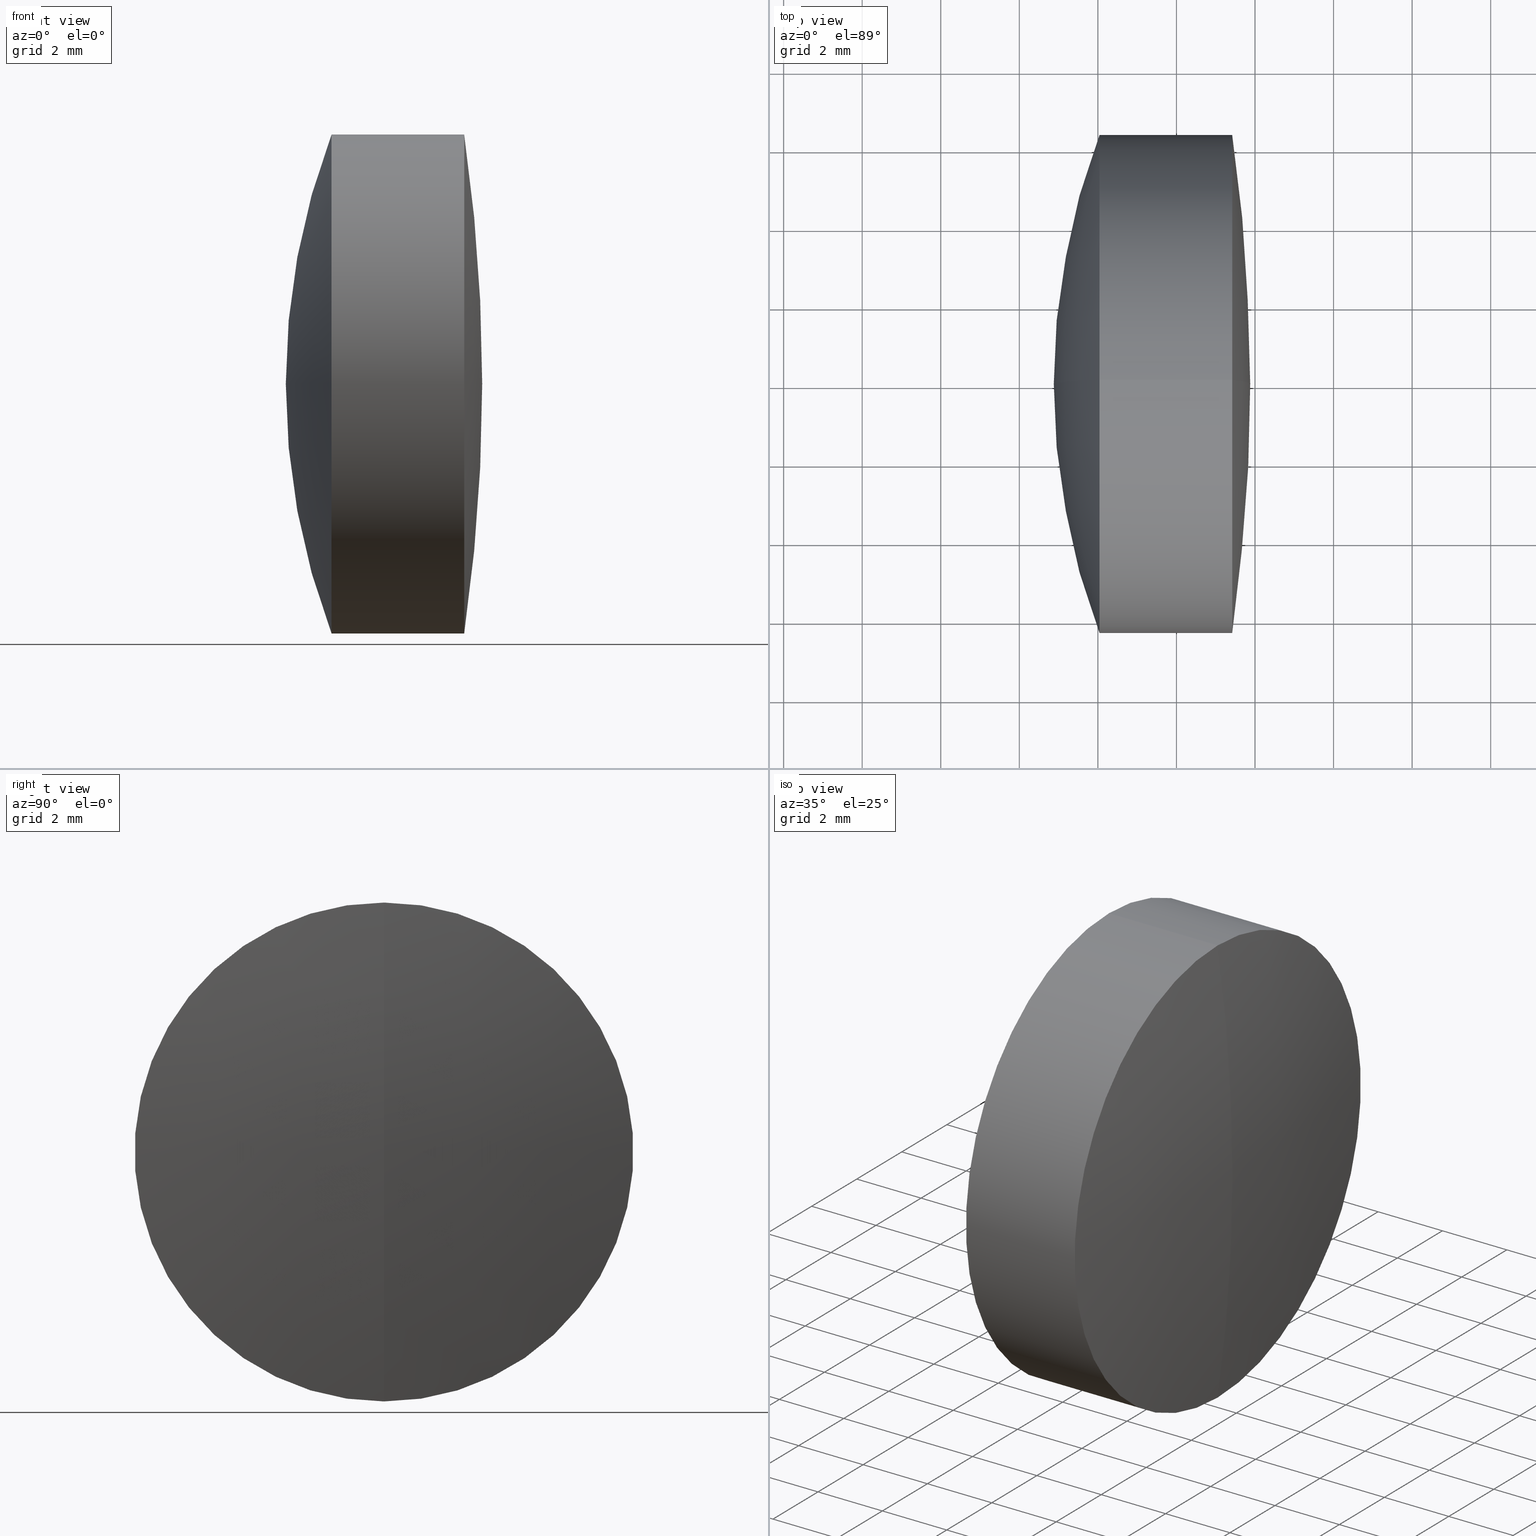
[diagram: canonical four-view strip — front | top / right | iso, engineering-drawing reading convention]
A machine part, canonical four-view strip (front | top / right | iso — engineering-drawing reading convention). The complete STEP part file that produces these views, byte-faithful:
ISO-10303-21;
HEADER;
FILE_DESCRIPTION (( 'STEP AP214' ),
    '1' );
FILE_NAME ('145026.STEP',
    '2019-05-10T08:41:28',
    ( 'user' ),
    ( '΢���й�' ),
    'SwSTEP 2.0',
    'SolidWorks 2016',
    '' );
FILE_SCHEMA (( 'AUTOMOTIVE_DESIGN' ));
ENDSEC;

DATA;
#1 = ORIENTED_EDGE ( 'NONE', *, *, #9, .T. ) ;
#2 = DIRECTION ( 'NONE',  ( 0.0000000000000000000, 0.0000000000000000000, 1.000000000000000000 ) ) ;
#3 = CARTESIAN_POINT ( 'NONE',  ( -9.122170847029236600, 0.0000000000000000000, 0.0000000000000000000 ) ) ;
#4 = CARTESIAN_POINT ( 'NONE',  ( -9.702612178336682500, 0.0000000000000000000, 0.0000000000000000000 ) ) ;
#5 = CARTESIAN_POINT ( 'NONE',  ( 18.77782915297076000, 0.0000000000000000000, -3.015192609939291800E-017 ) ) ;
#6 = ORIENTED_EDGE ( 'NONE', *, *, #180, .T. ) ;
#7 = CIRCLE ( 'NONE', #51, 13.50000000000000000 ) ;
#8 = PRODUCT ( '145026', '145026', '', ( #99 ) ) ;
#9 = EDGE_CURVE ( 'NONE', #326, #319, #221, .T. ) ;
#10 = ORIENTED_EDGE ( 'NONE', *, *, #294, .T. ) ;
#11 = FACE_OUTER_BOUND ( 'NONE', #289, .T. ) ;
#12 = CARTESIAN_POINT ( 'NONE',  ( 5.419314038603073600, 7.776507174585693100E-016, -6.349999999999999600 ) ) ;
#13 = CARTESIAN_POINT ( 'NONE',  ( 2.791162019973177300, 0.0000000000000000000, 0.0000000000000000000 ) ) ;
#14 = SPHERICAL_SURFACE ( 'NONE', #260, 17.89999999999999900 ) ;
#15 = EDGE_CURVE ( 'NONE', #319, #120, #347, .T. ) ;
#16 = PRESENTATION_STYLE_ASSIGNMENT (( #49 ) ) ;
#17 = ORIENTED_EDGE ( 'NONE', *, *, #86, .F. ) ;
#18 = ORIENTED_EDGE ( 'NONE', *, *, #306, .F. ) ;
#19 =( NAMED_UNIT ( * ) SI_UNIT ( $, .STERADIAN. ) SOLID_ANGLE_UNIT ( ) );
#20 = DIRECTION ( 'NONE',  ( -1.000000000000000000, -0.0000000000000000000, -0.0000000000000000000 ) ) ;
#21 = CYLINDRICAL_SURFACE ( 'NONE', #250, 6.350000000000000500 ) ;
#22 = CARTESIAN_POINT ( 'NONE',  ( -9.702612178336682500, 7.776507174585692200E-016, -6.349999999999999600 ) ) ;
#23 = VERTEX_POINT ( 'NONE', #208 ) ;
#24 = AXIS2_PLACEMENT_3D ( 'NONE', #105, #178, #224 ) ;
#25 = DIRECTION ( 'NONE',  ( -1.000000000000000000, -0.0000000000000000000, -0.0000000000000000000 ) ) ;
#26 = CIRCLE ( 'NONE', #31, 13.50000000000000000 ) ;
#27 = CIRCLE ( 'NONE', #98, 13.50000000000000000 ) ;
#28 = APPLICATION_PROTOCOL_DEFINITION ( 'draft international standard', 'automotive_design', 1998, #340 ) ;
#29 = ORIENTED_EDGE ( 'NONE', *, *, #196, .T. ) ;
#30 = VERTEX_POINT ( 'NONE', #101 ) ;
#31 = AXIS2_PLACEMENT_3D ( 'NONE', #3, #345, #133 ) ;
#32 = DIRECTION ( 'NONE',  ( -0.0000000000000000000, 1.000000000000000000, 1.224646799147353200E-016 ) ) ;
#33 = FILL_AREA_STYLE_COLOUR ( '', #84 ) ;
#34 = DIRECTION ( 'NONE',  ( 0.0000000000000000000, 0.0000000000000000000, 1.000000000000000000 ) ) ;
#35 = ORIENTED_EDGE ( 'NONE', *, *, #338, .F. ) ;
#36 = FACE_OUTER_BOUND ( 'NONE', #113, .T. ) ;
#37 = ORIENTED_EDGE ( 'NONE', *, *, #249, .F. ) ;
#38 = CARTESIAN_POINT ( 'NONE',  ( 2.791162019973177300, 7.776507174585694100E-016, -6.350000000000001400 ) ) ;
#39 = ADVANCED_FACE ( 'NONE', ( #322 ), #173, .T. ) ;
#40 = AXIS2_PLACEMENT_3D ( 'NONE', #283, #186, #280 ) ;
#41 = AXIS2_PLACEMENT_3D ( 'NONE', #13, #301, #346 ) ;
#42 = DIRECTION ( 'NONE',  ( -1.000000000000000000, -0.0000000000000000000, -0.0000000000000000000 ) ) ;
#43 = VERTEX_POINT ( 'NONE', #12 ) ;
#44 = FILL_AREA_STYLE ('',( #33 ) ) ;
#45 = CARTESIAN_POINT ( 'NONE',  ( 2.791162019973179000, 7.776507174585692200E-016, -6.349999999999999600 ) ) ;
#46 = EDGE_LOOP ( 'NONE', ( #281, #263, #152, #209 ) ) ;
#47 = ORIENTED_EDGE ( 'NONE', *, *, #192, .T. ) ;
#48 = ORIENTED_EDGE ( 'NONE', *, *, #210, .T. ) ;
#49 = SURFACE_STYLE_USAGE ( .BOTH. , #172 ) ;
#50 = DIRECTION ( 'NONE',  ( -1.000000000000000000, -0.0000000000000000000, -0.0000000000000000000 ) ) ;
#51 = AXIS2_PLACEMENT_3D ( 'NONE', #295, #165, #134 ) ;
#52 = FILL_AREA_STYLE_COLOUR ( '', #81 ) ;
#53 = ORIENTED_EDGE ( 'NONE', *, *, #287, .F. ) ;
#54 = SURFACE_STYLE_FILL_AREA ( #94 ) ;
#55 = SHAPE_DEFINITION_REPRESENTATION ( #342, #82 ) ;
#56 = STYLED_ITEM ( 'NONE', ( #299 ), #82 ) ;
#57 = VERTEX_POINT ( 'NONE', #266 ) ;
#58 = ORIENTED_EDGE ( 'NONE', *, *, #63, .F. ) ;
#59 = ORIENTED_EDGE ( 'NONE', *, *, #234, .F. ) ;
#60 = DIRECTION ( 'NONE',  ( -1.000000000000000000, -0.0000000000000000000, -0.0000000000000000000 ) ) ;
#61 = UNCERTAINTY_MEASURE_WITH_UNIT (LENGTH_MEASURE( 1.000000000000000100E-005 ), #262, 'distance_accuracy_value', 'NONE');
#62 = CARTESIAN_POINT ( 'NONE',  ( 5.419314038603073600, 0.0000000000000000000, 0.0000000000000000000 ) ) ;
#63 = EDGE_CURVE ( 'NONE', #135, #332, #146, .T. ) ;
#64 = EDGE_LOOP ( 'NONE', ( #140, #29, #58, #118 ) ) ;
#65 = AXIS2_PLACEMENT_3D ( 'NONE', #207, #256, #344 ) ;
#66 = DIRECTION ( 'NONE',  ( -1.000000000000000000, -0.0000000000000000000, -0.0000000000000000000 ) ) ;
#67 = DIRECTION ( 'NONE',  ( -1.000000000000000000, -0.0000000000000000000, -0.0000000000000000000 ) ) ;
#68 = EDGE_LOOP ( 'NONE', ( #53, #1, #198, #37 ) ) ;
#69 = DIRECTION ( 'NONE',  ( 0.0000000000000000000, 0.0000000000000000000, 1.000000000000000000 ) ) ;
#70 = SPHERICAL_SURFACE ( 'NONE', #343, 44.20000000000000300 ) ;
#71 =( GEOMETRIC_REPRESENTATION_CONTEXT ( 3 ) GLOBAL_UNCERTAINTY_ASSIGNED_CONTEXT ( ( #166 ) ) GLOBAL_UNIT_ASSIGNED_CONTEXT ( ( #162, #195, #129 ) ) REPRESENTATION_CONTEXT ( 'NONE', 'WORKASPACE' ) );
#72 = FILL_AREA_STYLE ('',( #155 ) ) ;
#73 = CIRCLE ( 'NONE', #244, 44.20000000000000300 ) ;
#74 = UNCERTAINTY_MEASURE_WITH_UNIT (LENGTH_MEASURE( 1.000000000000000100E-005 ), #145, 'distance_accuracy_value', 'NONE');
#75 = DIRECTION ( 'NONE',  ( -0.0000000000000000000, 1.000000000000000000, 1.224646799147353200E-016 ) ) ;
#76 = SPHERICAL_SURFACE ( 'NONE', #212, 13.50000000000000000 ) ;
#77 = SPHERICAL_SURFACE ( 'NONE', #65, 13.50000000000000000 ) ;
#78 = ADVANCED_FACE ( 'NONE', ( #11 ), #320, .T. ) ;
#79 =( GEOMETRIC_REPRESENTATION_CONTEXT ( 3 ) GLOBAL_UNCERTAINTY_ASSIGNED_CONTEXT ( ( #247 ) ) GLOBAL_UNIT_ASSIGNED_CONTEXT ( ( #96, #138, #19 ) ) REPRESENTATION_CONTEXT ( 'NONE', 'WORKASPACE' ) );
#80 = EDGE_LOOP ( 'NONE', ( #204, #147, #119 ) ) ;
#81 = COLOUR_RGB ( '',1.000000000000000000, 1.000000000000000000, 1.000000000000000000 ) ;
#82 = ADVANCED_BREP_SHAPE_REPRESENTATION ( '145026', ( #143, #176, #279 ), #79 ) ;
#83 = DIRECTION ( 'NONE',  ( 0.0000000000000000000, 0.0000000000000000000, 1.000000000000000000 ) ) ;
#84 = COLOUR_RGB ( '',1.000000000000000000, 1.000000000000000000, 1.000000000000000000 ) ;
#85 = ADVANCED_FACE ( 'NONE', ( #97 ), #14, .T. ) ;
#86 = EDGE_CURVE ( 'NONE', #339, #43, #73, .T. ) ;
#87 = APPLICATION_CONTEXT ( 'automotive_design' ) ;
#88 = AXIS2_PLACEMENT_3D ( 'NONE', #136, #67, #324 ) ;
#89 = DIRECTION ( 'NONE',  ( 1.000000000000000000, 0.0000000000000000000, 0.0000000000000000000 ) ) ;
#90 = SURFACE_STYLE_FILL_AREA ( #44 ) ;
#91 = CARTESIAN_POINT ( 'NONE',  ( -9.122170847029236600, 0.0000000000000000000, 0.0000000000000000000 ) ) ;
#92 = DIRECTION ( 'NONE',  ( 0.0000000000000000000, -1.224646799147353200E-016, 1.000000000000000000 ) ) ;
#93 = PRESENTATION_STYLE_ASSIGNMENT (( #334 ) ) ;
#94 = FILL_AREA_STYLE ('',( #52 ) ) ;
#95 = FACE_OUTER_BOUND ( 'NONE', #80, .T. ) ;
#96 =( LENGTH_UNIT ( ) NAMED_UNIT ( * ) SI_UNIT ( .MILLI., .METRE. ) );
#97 = FACE_OUTER_BOUND ( 'NONE', #185, .T. ) ;
#98 = AXIS2_PLACEMENT_3D ( 'NONE', #167, #32, #142 ) ;
#99 = PRODUCT_CONTEXT ( 'NONE', #87, 'mechanical' ) ;
#100 = DIRECTION ( 'NONE',  ( 0.0000000000000000000, 1.000000000000000000, 0.0000000000000000000 ) ) ;
#101 = CARTESIAN_POINT ( 'NONE',  ( 2.042014263937123700, 7.776507174585694100E-016, -6.350000000000000500 ) ) ;
#102 = STYLED_ITEM ( 'NONE', ( #93 ), #143 ) ;
#103 = FACE_OUTER_BOUND ( 'NONE', #46, .T. ) ;
#104 = ADVANCED_FACE ( 'NONE', ( #36 ), #70, .T. ) ;
#105 = CARTESIAN_POINT ( 'NONE',  ( 2.042014263937123700, 0.0000000000000000000, 0.0000000000000000000 ) ) ;
#106 = VERTEX_POINT ( 'NONE', #273 ) ;
#107 = COLOUR_RGB ( '',1.000000000000000000, 1.000000000000000000, 1.000000000000000000 ) ;
#108 = ORIENTED_EDGE ( 'NONE', *, *, #328, .T. ) ;
#109 = AXIS2_PLACEMENT_3D ( 'NONE', #311, #304, #228 ) ;
#110 = SPHERICAL_SURFACE ( 'NONE', #240, 13.50000000000000000 ) ;
#111 = VECTOR ( 'NONE', #50, 1000.000000000000000 ) ;
#112 = CARTESIAN_POINT ( 'NONE',  ( -38.32217084702924100, 0.0000000000000000000, 0.0000000000000000000 ) ) ;
#113 = EDGE_LOOP ( 'NONE', ( #17, #47, #164 ) ) ;
#114 = CARTESIAN_POINT ( 'NONE',  ( -0.5519199926577972300, 7.776507174585693100E-016, -6.350000000000000500 ) ) ;
#115 = MECHANICAL_DESIGN_GEOMETRIC_PRESENTATION_REPRESENTATION (  '', ( #267 ), #71 ) ;
#116 = CIRCLE ( 'NONE', #41, 6.350000000000001400 ) ;
#117 = DIRECTION ( 'NONE',  ( -1.000000000000000000, -0.0000000000000000000, -0.0000000000000000000 ) ) ;
#118 = ORIENTED_EDGE ( 'NONE', *, *, #210, .F. ) ;
#119 = ORIENTED_EDGE ( 'NONE', *, *, #9, .F. ) ;
#120 = VERTEX_POINT ( 'NONE', #231 ) ;
#121 = DIRECTION ( 'NONE',  ( 0.0000000000000000000, 0.0000000000000000000, 1.000000000000000000 ) ) ;
#122 = CARTESIAN_POINT ( 'NONE',  ( 18.77782915297076000, 0.0000000000000000000, -3.015192609939291800E-017 ) ) ;
#123 = AXIS2_PLACEMENT_3D ( 'NONE', #184, #233, #181 ) ;
#124 = CARTESIAN_POINT ( 'NONE',  ( 2.042014263937123700, 0.0000000000000000000, 0.0000000000000000000 ) ) ;
#125 = DIRECTION ( 'NONE',  ( 0.0000000000000000000, 0.0000000000000000000, 1.000000000000000000 ) ) ;
#126 = PRODUCT_DEFINITION_CONTEXT ( 'detailed design', #340, 'design' ) ;
#127 = CARTESIAN_POINT ( 'NONE',  ( -0.5519199926577972300, 0.0000000000000000000, 6.350000000000000500 ) ) ;
#128 = ORIENTED_EDGE ( 'NONE', *, *, #313, .T. ) ;
#129 =( NAMED_UNIT ( * ) SI_UNIT ( $, .STERADIAN. ) SOLID_ANGLE_UNIT ( ) );
#130 = DIRECTION ( 'NONE',  ( -1.000000000000000000, -0.0000000000000000000, -0.0000000000000000000 ) ) ;
#131 = DIRECTION ( 'NONE',  ( -1.000000000000000000, -0.0000000000000000000, -0.0000000000000000000 ) ) ;
#132 = AXIS2_PLACEMENT_3D ( 'NONE', #291, #282, #69 ) ;
#133 = DIRECTION ( 'NONE',  ( 0.0000000000000000000, 0.0000000000000000000, -1.000000000000000000 ) ) ;
#134 = DIRECTION ( 'NONE',  ( 0.0000000000000000000, -1.224646799147353200E-016, 1.000000000000000000 ) ) ;
#135 = VERTEX_POINT ( 'NONE', #222 ) ;
#136 = CARTESIAN_POINT ( 'NONE',  ( -9.702612178336682500, 0.0000000000000000000, 0.0000000000000000000 ) ) ;
#137 = FACE_OUTER_BOUND ( 'NONE', #68, .T. ) ;
#138 =( NAMED_UNIT ( * ) PLANE_ANGLE_UNIT ( ) SI_UNIT ( $, .RADIAN. ) );
#139 = CARTESIAN_POINT ( 'NONE',  ( -9.702612178336682500, 0.0000000000000000000, 6.349999999999999600 ) ) ;
#140 = ORIENTED_EDGE ( 'NONE', *, *, #234, .T. ) ;
#141 =( NAMED_UNIT ( * ) PLANE_ANGLE_UNIT ( ) SI_UNIT ( $, .RADIAN. ) );
#142 = DIRECTION ( 'NONE',  ( 0.0000000000000000000, -1.224646799147353200E-016, 1.000000000000000000 ) ) ;
#143 = MANIFOLD_SOLID_BREP ( '��ת1', #293 ) ;
#144 = AXIS2_PLACEMENT_3D ( 'NONE', #206, #230, #34 ) ;
#145 =( LENGTH_UNIT ( ) NAMED_UNIT ( * ) SI_UNIT ( .MILLI., .METRE. ) );
#146 = CIRCLE ( 'NONE', #123, 6.350000000000001400 ) ;
#147 = ORIENTED_EDGE ( 'NONE', *, *, #227, .T. ) ;
#148 = DIRECTION ( 'NONE',  ( 0.0000000000000000000, 0.0000000000000000000, 1.000000000000000000 ) ) ;
#149 = AXIS2_PLACEMENT_3D ( 'NONE', #248, #189, #241 ) ;
#150 = DIRECTION ( 'NONE',  ( 0.0000000000000000000, 1.000000000000000000, 0.0000000000000000000 ) ) ;
#151 = CARTESIAN_POINT ( 'NONE',  ( 2.791162019973179000, 0.0000000000000000000, 0.0000000000000000000 ) ) ;
#152 = ORIENTED_EDGE ( 'NONE', *, *, #180, .F. ) ;
#153 = APPLICATION_PROTOCOL_DEFINITION ( 'draft international standard', 'automotive_design', 1998, #87 ) ;
#154 = CARTESIAN_POINT ( 'NONE',  ( 5.877829152970762500, 0.0000000000000000000, 2.706469426115651000E-015 ) ) ;
#155 = FILL_AREA_STYLE_COLOUR ( '', #107 ) ;
#156 = CYLINDRICAL_SURFACE ( 'NONE', #271, 6.350000000000000500 ) ;
#157 = DIRECTION ( 'NONE',  ( -1.000000000000000000, -0.0000000000000000000, -0.0000000000000000000 ) ) ;
#158 = CARTESIAN_POINT ( 'NONE',  ( -0.5519199926577972300, 0.0000000000000000000, 0.0000000000000000000 ) ) ;
#159 = EDGE_CURVE ( 'NONE', #120, #309, #335, .T. ) ;
#160 = FACE_OUTER_BOUND ( 'NONE', #310, .T. ) ;
#161 = AXIS2_PLACEMENT_3D ( 'NONE', #229, #42, #148 ) ;
#162 =( LENGTH_UNIT ( ) NAMED_UNIT ( * ) SI_UNIT ( .MILLI., .METRE. ) );
#163 = DIRECTION ( 'NONE',  ( 0.0000000000000000000, 0.0000000000000000000, -1.000000000000000000 ) ) ;
#164 = ORIENTED_EDGE ( 'NONE', *, *, #328, .F. ) ;
#165 = DIRECTION ( 'NONE',  ( -0.0000000000000000000, 1.000000000000000000, 1.224646799147353200E-016 ) ) ;
#166 = UNCERTAINTY_MEASURE_WITH_UNIT (LENGTH_MEASURE( 1.000000000000000100E-005 ), #162, 'distance_accuracy_value', 'NONE');
#167 = CARTESIAN_POINT ( 'NONE',  ( -9.122170847029236600, 0.0000000000000000000, 0.0000000000000000000 ) ) ;
#168 = FACE_OUTER_BOUND ( 'NONE', #235, .T. ) ;
#169 =( NAMED_UNIT ( * ) PLANE_ANGLE_UNIT ( ) SI_UNIT ( $, .RADIAN. ) );
#170 = DIRECTION ( 'NONE',  ( 0.0000000000000000000, 1.000000000000000000, 0.0000000000000000000 ) ) ;
#171 = CIRCLE ( 'NONE', #203, 6.349999999999999600 ) ;
#172 = SURFACE_SIDE_STYLE ('',( #54 ) ) ;
#173 = SPHERICAL_SURFACE ( 'NONE', #40, 44.20000000000000300 ) ;
#174 = LINE ( 'NONE', #22, #205 ) ;
#175 = AXIS2_PLACEMENT_3D ( 'NONE', #217, #170, #194 ) ;
#176 = MANIFOLD_SOLID_BREP ( '��ת3', #316 ) ;
#177 = EDGE_LOOP ( 'NONE', ( #275, #269, #59 ) ) ;
#178 = DIRECTION ( 'NONE',  ( -1.000000000000000000, -0.0000000000000000000, -0.0000000000000000000 ) ) ;
#179 = ORIENTED_EDGE ( 'NONE', *, *, #159, .F. ) ;
#180 = EDGE_CURVE ( 'NONE', #120, #30, #171, .T. ) ;
#181 = DIRECTION ( 'NONE',  ( 0.0000000000000000000, 0.0000000000000000000, 1.000000000000000000 ) ) ;
#182 = FACE_OUTER_BOUND ( 'NONE', #215, .T. ) ;
#183 =( GEOMETRIC_REPRESENTATION_CONTEXT ( 3 ) GLOBAL_UNCERTAINTY_ASSIGNED_CONTEXT ( ( #61 ) ) GLOBAL_UNIT_ASSIGNED_CONTEXT ( ( #262, #169, #225 ) ) REPRESENTATION_CONTEXT ( 'NONE', 'WORKASPACE' ) );
#184 = CARTESIAN_POINT ( 'NONE',  ( 2.791162019973177300, 0.0000000000000000000, 0.0000000000000000000 ) ) ;
#185 = EDGE_LOOP ( 'NONE', ( #6, #303, #179 ) ) ;
#186 = DIRECTION ( 'NONE',  ( 0.0000000000000000000, 1.000000000000000000, 0.0000000000000000000 ) ) ;
#187 = LINE ( 'NONE', #127, #199 ) ;
#188 = ADVANCED_FACE ( 'NONE', ( #168 ), #77, .F. ) ;
#189 = DIRECTION ( 'NONE',  ( 0.0000000000000000000, -1.000000000000000000, 0.0000000000000000000 ) ) ;
#190 = ORIENTED_EDGE ( 'NONE', *, *, #249, .T. ) ;
#191 = CARTESIAN_POINT ( 'NONE',  ( 2.791162019973179000, 0.0000000000000000000, 6.349999999999999600 ) ) ;
#192 = EDGE_CURVE ( 'NONE', #339, #106, #213, .T. ) ;
#193 = ORIENTED_EDGE ( 'NONE', *, *, #306, .T. ) ;
#194 = DIRECTION ( 'NONE',  ( 0.0000000000000000000, 0.0000000000000000000, 1.000000000000000000 ) ) ;
#195 =( NAMED_UNIT ( * ) PLANE_ANGLE_UNIT ( ) SI_UNIT ( $, .RADIAN. ) );
#196 = EDGE_CURVE ( 'NONE', #43, #332, #286, .T. ) ;
#197 = MECHANICAL_DESIGN_GEOMETRIC_PRESENTATION_REPRESENTATION (  '', ( #56 ), #183 ) ;
#198 = ORIENTED_EDGE ( 'NONE', *, *, #15, .T. ) ;
#199 = VECTOR ( 'NONE', #130, 1000.000000000000000 ) ;
#200 = CIRCLE ( 'NONE', #323, 6.349999999999999600 ) ;
#201 = CARTESIAN_POINT ( 'NONE',  ( 0.0000000000000000000, 0.0000000000000000000, 0.0000000000000000000 ) ) ;
#202 = DIRECTION ( 'NONE',  ( 0.0000000000000000000, 1.000000000000000000, 0.0000000000000000000 ) ) ;
#203 = AXIS2_PLACEMENT_3D ( 'NONE', #124, #66, #246 ) ;
#204 = ORIENTED_EDGE ( 'NONE', *, *, #294, .F. ) ;
#205 = VECTOR ( 'NONE', #20, 1000.000000000000000 ) ;
#206 = CARTESIAN_POINT ( 'NONE',  ( 2.791162019973179000, 0.0000000000000000000, 0.0000000000000000000 ) ) ;
#207 = CARTESIAN_POINT ( 'NONE',  ( -9.122170847029236600, 0.0000000000000000000, 0.0000000000000000000 ) ) ;
#208 = CARTESIAN_POINT ( 'NONE',  ( 4.377829152970762500, 0.0000000000000000000, 8.266365894244634300E-016 ) ) ;
#209 = ORIENTED_EDGE ( 'NONE', *, *, #15, .F. ) ;
#210 = EDGE_CURVE ( 'NONE', #106, #135, #187, .T. ) ;
#211 = DIRECTION ( 'NONE',  ( 0.0000000000000000000, 1.000000000000000000, 0.0000000000000000000 ) ) ;
#212 = AXIS2_PLACEMENT_3D ( 'NONE', #91, #100, #2 ) ;
#213 = CIRCLE ( 'NONE', #149, 44.20000000000000300 ) ;
#214 = SURFACE_STYLE_USAGE ( .BOTH. , #292 ) ;
#215 = EDGE_LOOP ( 'NONE', ( #274, #108, #48, #18 ) ) ;
#216 = CARTESIAN_POINT ( 'NONE',  ( 0.8778291529707611400, 0.0000000000000000000, 1.065906959137488200E-015 ) ) ;
#217 = CARTESIAN_POINT ( 'NONE',  ( 18.77782915297076000, 0.0000000000000000000, -3.015192609939291800E-017 ) ) ;
#218 = EDGE_CURVE ( 'NONE', #30, #309, #284, .T. ) ;
#219 =( GEOMETRIC_REPRESENTATION_CONTEXT ( 3 ) GLOBAL_UNCERTAINTY_ASSIGNED_CONTEXT ( ( #74 ) ) GLOBAL_UNIT_ASSIGNED_CONTEXT ( ( #145, #141, #300 ) ) REPRESENTATION_CONTEXT ( 'NONE', 'WORKASPACE' ) );
#220 = PRODUCT_RELATED_PRODUCT_CATEGORY ( 'part', '', ( #8 ) ) ;
#221 = CIRCLE ( 'NONE', #144, 6.349999999999999600 ) ;
#222 = CARTESIAN_POINT ( 'NONE',  ( 2.791162019973177300, 0.0000000000000000000, 6.350000000000001400 ) ) ;
#223 = AXIS2_PLACEMENT_3D ( 'NONE', #4, #252, #253 ) ;
#224 = DIRECTION ( 'NONE',  ( 0.0000000000000000000, 0.0000000000000000000, 1.000000000000000000 ) ) ;
#225 =( NAMED_UNIT ( * ) SI_UNIT ( $, .STERADIAN. ) SOLID_ANGLE_UNIT ( ) );
#226 = EDGE_LOOP ( 'NONE', ( #35, #128, #297 ) ) ;
#227 = EDGE_CURVE ( 'NONE', #23, #319, #238, .T. ) ;
#228 = DIRECTION ( 'NONE',  ( 0.0000000000000000000, 0.0000000000000000000, -1.000000000000000000 ) ) ;
#229 = CARTESIAN_POINT ( 'NONE',  ( 5.419314038603073600, 0.0000000000000000000, 0.0000000000000000000 ) ) ;
#230 = DIRECTION ( 'NONE',  ( -1.000000000000000000, -0.0000000000000000000, -0.0000000000000000000 ) ) ;
#231 = CARTESIAN_POINT ( 'NONE',  ( 2.042014263937123700, 0.0000000000000000000, 6.350000000000000500 ) ) ;
#232 = FACE_OUTER_BOUND ( 'NONE', #64, .T. ) ;
#233 = DIRECTION ( 'NONE',  ( -1.000000000000000000, -0.0000000000000000000, -0.0000000000000000000 ) ) ;
#234 = EDGE_CURVE ( 'NONE', #106, #43, #317, .T. ) ;
#235 = EDGE_LOOP ( 'NONE', ( #276, #333, #193 ) ) ;
#236 = ADVANCED_FACE ( 'NONE', ( #103 ), #341, .T. ) ;
#237 = SPHERICAL_SURFACE ( 'NONE', #132, 13.50000000000000000 ) ;
#238 = CIRCLE ( 'NONE', #109, 13.50000000000000000 ) ;
#239 = DIRECTION ( 'NONE',  ( 0.0000000000000000000, 0.0000000000000000000, 1.000000000000000000 ) ) ;
#240 = AXIS2_PLACEMENT_3D ( 'NONE', #251, #202, #239 ) ;
#241 = DIRECTION ( 'NONE',  ( 0.0000000000000000000, 0.0000000000000000000, -1.000000000000000000 ) ) ;
#242 = DIRECTION ( 'NONE',  ( 0.0000000000000000000, -1.224646799147353200E-016, 1.000000000000000000 ) ) ;
#243 = ADVANCED_FACE ( 'NONE', ( #160 ), #110, .T. ) ;
#244 = AXIS2_PLACEMENT_3D ( 'NONE', #112, #272, #242 ) ;
#245 = DIRECTION ( 'NONE',  ( 0.0000000000000000000, 0.0000000000000000000, 1.000000000000000000 ) ) ;
#246 = DIRECTION ( 'NONE',  ( 0.0000000000000000000, 0.0000000000000000000, 1.000000000000000000 ) ) ;
#247 = UNCERTAINTY_MEASURE_WITH_UNIT (LENGTH_MEASURE( 1.000000000000000100E-005 ), #96, 'distance_accuracy_value', 'NONE');
#248 = CARTESIAN_POINT ( 'NONE',  ( -38.32217084702924100, 0.0000000000000000000, 0.0000000000000000000 ) ) ;
#249 = EDGE_CURVE ( 'NONE', #30, #120, #312, .T. ) ;
#250 = AXIS2_PLACEMENT_3D ( 'NONE', #158, #25, #245 ) ;
#251 = CARTESIAN_POINT ( 'NONE',  ( -9.122170847029236600, 0.0000000000000000000, 0.0000000000000000000 ) ) ;
#252 = DIRECTION ( 'NONE',  ( -1.000000000000000000, -0.0000000000000000000, -0.0000000000000000000 ) ) ;
#253 = DIRECTION ( 'NONE',  ( 0.0000000000000000000, 0.0000000000000000000, 1.000000000000000000 ) ) ;
#254 = CYLINDRICAL_SURFACE ( 'NONE', #223, 6.349999999999999600 ) ;
#255 = CARTESIAN_POINT ( 'NONE',  ( -0.5519199926577972300, 0.0000000000000000000, 0.0000000000000000000 ) ) ;
#256 = DIRECTION ( 'NONE',  ( 0.0000000000000000000, 1.000000000000000000, 0.0000000000000000000 ) ) ;
#257 = SURFACE_STYLE_FILL_AREA ( #72 ) ;
#258 = ADVANCED_FACE ( 'NONE', ( #137 ), #254, .T. ) ;
#259 = ADVANCED_FACE ( 'NONE', ( #329 ), #237, .F. ) ;
#260 = AXIS2_PLACEMENT_3D ( 'NONE', #305, #211, #125 ) ;
#261 = ORIENTED_EDGE ( 'NONE', *, *, #218, .F. ) ;
#262 =( LENGTH_UNIT ( ) NAMED_UNIT ( * ) SI_UNIT ( .MILLI., .METRE. ) );
#263 = ORIENTED_EDGE ( 'NONE', *, *, #287, .T. ) ;
#264 = PRESENTATION_LAYER_ASSIGNMENT (  '', '', ( #102 ) ) ;
#265 = AXIS2_PLACEMENT_3D ( 'NONE', #62, #131, #83 ) ;
#266 = CARTESIAN_POINT ( 'NONE',  ( 4.377829152970762500, 0.0000000000000000000, 8.266365894244634300E-016 ) ) ;
#267 = STYLED_ITEM ( 'NONE', ( #16 ), #176 ) ;
#268 = CIRCLE ( 'NONE', #265, 6.349999999999999600 ) ;
#269 = ORIENTED_EDGE ( 'NONE', *, *, #86, .T. ) ;
#270 = EDGE_CURVE ( 'NONE', #319, #326, #200, .T. ) ;
#271 = AXIS2_PLACEMENT_3D ( 'NONE', #255, #60, #308 ) ;
#272 = DIRECTION ( 'NONE',  ( -0.0000000000000000000, 1.000000000000000000, 1.224646799147353200E-016 ) ) ;
#273 = CARTESIAN_POINT ( 'NONE',  ( 5.419314038603073600, 0.0000000000000000000, 6.349999999999999600 ) ) ;
#274 = ORIENTED_EDGE ( 'NONE', *, *, #196, .F. ) ;
#275 = ORIENTED_EDGE ( 'NONE', *, *, #192, .F. ) ;
#276 = ORIENTED_EDGE ( 'NONE', *, *, #313, .F. ) ;
#277 = PRESENTATION_LAYER_ASSIGNMENT (  '', '', ( #267 ) ) ;
#278 = ADVANCED_FACE ( 'NONE', ( #182 ), #156, .T. ) ;
#279 = AXIS2_PLACEMENT_3D ( 'NONE', #201, #121, #89 ) ;
#280 = DIRECTION ( 'NONE',  ( 0.0000000000000000000, 0.0000000000000000000, 1.000000000000000000 ) ) ;
#281 = ORIENTED_EDGE ( 'NONE', *, *, #270, .T. ) ;
#282 = DIRECTION ( 'NONE',  ( 0.0000000000000000000, 1.000000000000000000, 0.0000000000000000000 ) ) ;
#283 = CARTESIAN_POINT ( 'NONE',  ( -38.32217084702924100, 0.0000000000000000000, 0.0000000000000000000 ) ) ;
#284 = CIRCLE ( 'NONE', #321, 17.89999999999999900 ) ;
#285 = ADVANCED_FACE ( 'NONE', ( #95 ), #76, .T. ) ;
#286 = LINE ( 'NONE', #114, #111 ) ;
#287 = EDGE_CURVE ( 'NONE', #326, #30, #174, .T. ) ;
#288 = MECHANICAL_DESIGN_GEOMETRIC_PRESENTATION_REPRESENTATION (  '', ( #102 ), #219 ) ;
#289 = EDGE_LOOP ( 'NONE', ( #261, #190, #298 ) ) ;
#290 = ORIENTED_EDGE ( 'NONE', *, *, #227, .F. ) ;
#291 = CARTESIAN_POINT ( 'NONE',  ( -9.122170847029236600, 0.0000000000000000000, 0.0000000000000000000 ) ) ;
#292 = SURFACE_SIDE_STYLE ('',( #257 ) ) ;
#293 = CLOSED_SHELL ( 'NONE', ( #243, #236, #85, #78, #258, #285 ) ) ;
#294 = EDGE_CURVE ( 'NONE', #23, #326, #7, .T. ) ;
#295 = CARTESIAN_POINT ( 'NONE',  ( -9.122170847029236600, 0.0000000000000000000, 0.0000000000000000000 ) ) ;
#296 = PRODUCT_DEFINITION ( 'δ֪', '', #315, #126 ) ;
#297 = ORIENTED_EDGE ( 'NONE', *, *, #63, .T. ) ;
#298 = ORIENTED_EDGE ( 'NONE', *, *, #159, .T. ) ;
#299 = PRESENTATION_STYLE_ASSIGNMENT (( #214 ) ) ;
#300 =( NAMED_UNIT ( * ) SI_UNIT ( $, .STERADIAN. ) SOLID_ANGLE_UNIT ( ) );
#301 = DIRECTION ( 'NONE',  ( -1.000000000000000000, -0.0000000000000000000, -0.0000000000000000000 ) ) ;
#302 = PRESENTATION_LAYER_ASSIGNMENT (  '', '', ( #56 ) ) ;
#303 = ORIENTED_EDGE ( 'NONE', *, *, #218, .T. ) ;
#304 = DIRECTION ( 'NONE',  ( 0.0000000000000000000, -1.000000000000000000, 0.0000000000000000000 ) ) ;
#305 = CARTESIAN_POINT ( 'NONE',  ( 18.77782915297076000, 0.0000000000000000000, -3.015192609939291800E-017 ) ) ;
#306 = EDGE_CURVE ( 'NONE', #332, #135, #116, .T. ) ;
#307 = DIRECTION ( 'NONE',  ( 0.0000000000000000000, -1.000000000000000000, 0.0000000000000000000 ) ) ;
#308 = DIRECTION ( 'NONE',  ( 0.0000000000000000000, 0.0000000000000000000, 1.000000000000000000 ) ) ;
#309 = VERTEX_POINT ( 'NONE', #216 ) ;
#310 = EDGE_LOOP ( 'NONE', ( #290, #10, #336 ) ) ;
#311 = CARTESIAN_POINT ( 'NONE',  ( -9.122170847029236600, 0.0000000000000000000, 0.0000000000000000000 ) ) ;
#312 = CIRCLE ( 'NONE', #24, 6.349999999999999600 ) ;
#313 = EDGE_CURVE ( 'NONE', #57, #135, #26, .T. ) ;
#314 = AXIS2_PLACEMENT_3D ( 'NONE', #122, #307, #163 ) ;
#315 = PRODUCT_DEFINITION_FORMATION_WITH_SPECIFIED_SOURCE ( '�κ�', '', #8, .NOT_KNOWN. ) ;
#316 = CLOSED_SHELL ( 'NONE', ( #39, #337, #188, #259, #278, #104 ) ) ;
#317 = CIRCLE ( 'NONE', #161, 6.349999999999999600 ) ;
#318 = DIRECTION ( 'NONE',  ( 0.0000000000000000000, 0.0000000000000000000, 1.000000000000000000 ) ) ;
#319 = VERTEX_POINT ( 'NONE', #191 ) ;
#320 = SPHERICAL_SURFACE ( 'NONE', #175, 17.89999999999999900 ) ;
#321 = AXIS2_PLACEMENT_3D ( 'NONE', #5, #75, #92 ) ;
#322 = FACE_OUTER_BOUND ( 'NONE', #177, .T. ) ;
#323 = AXIS2_PLACEMENT_3D ( 'NONE', #151, #157, #318 ) ;
#324 = DIRECTION ( 'NONE',  ( 0.0000000000000000000, 0.0000000000000000000, 1.000000000000000000 ) ) ;
#325 = VECTOR ( 'NONE', #117, 1000.000000000000000 ) ;
#326 = VERTEX_POINT ( 'NONE', #45 ) ;
#327 = CARTESIAN_POINT ( 'NONE',  ( -38.32217084702924100, 0.0000000000000000000, 0.0000000000000000000 ) ) ;
#328 = EDGE_CURVE ( 'NONE', #43, #106, #268, .T. ) ;
#329 = FACE_OUTER_BOUND ( 'NONE', #226, .T. ) ;
#330 = DIRECTION ( 'NONE',  ( 0.0000000000000000000, 0.0000000000000000000, 1.000000000000000000 ) ) ;
#331 = SURFACE_SIDE_STYLE ('',( #90 ) ) ;
#332 = VERTEX_POINT ( 'NONE', #38 ) ;
#333 = ORIENTED_EDGE ( 'NONE', *, *, #338, .T. ) ;
#334 = SURFACE_STYLE_USAGE ( .BOTH. , #331 ) ;
#335 = CIRCLE ( 'NONE', #314, 17.89999999999999900 ) ;
#336 = ORIENTED_EDGE ( 'NONE', *, *, #270, .F. ) ;
#337 = ADVANCED_FACE ( 'NONE', ( #232 ), #21, .T. ) ;
#338 = EDGE_CURVE ( 'NONE', #57, #332, #27, .T. ) ;
#339 = VERTEX_POINT ( 'NONE', #154 ) ;
#340 = APPLICATION_CONTEXT ( 'automotive_design' ) ;
#341 = CYLINDRICAL_SURFACE ( 'NONE', #88, 6.349999999999999600 ) ;
#342 = PRODUCT_DEFINITION_SHAPE ( 'NONE', 'NONE',  #296 ) ;
#343 = AXIS2_PLACEMENT_3D ( 'NONE', #327, #150, #330 ) ;
#344 = DIRECTION ( 'NONE',  ( 0.0000000000000000000, 0.0000000000000000000, 1.000000000000000000 ) ) ;
#345 = DIRECTION ( 'NONE',  ( 0.0000000000000000000, -1.000000000000000000, 0.0000000000000000000 ) ) ;
#346 = DIRECTION ( 'NONE',  ( 0.0000000000000000000, 0.0000000000000000000, 1.000000000000000000 ) ) ;
#347 = LINE ( 'NONE', #139, #325 ) ;
ENDSEC;
END-ISO-10303-21;
